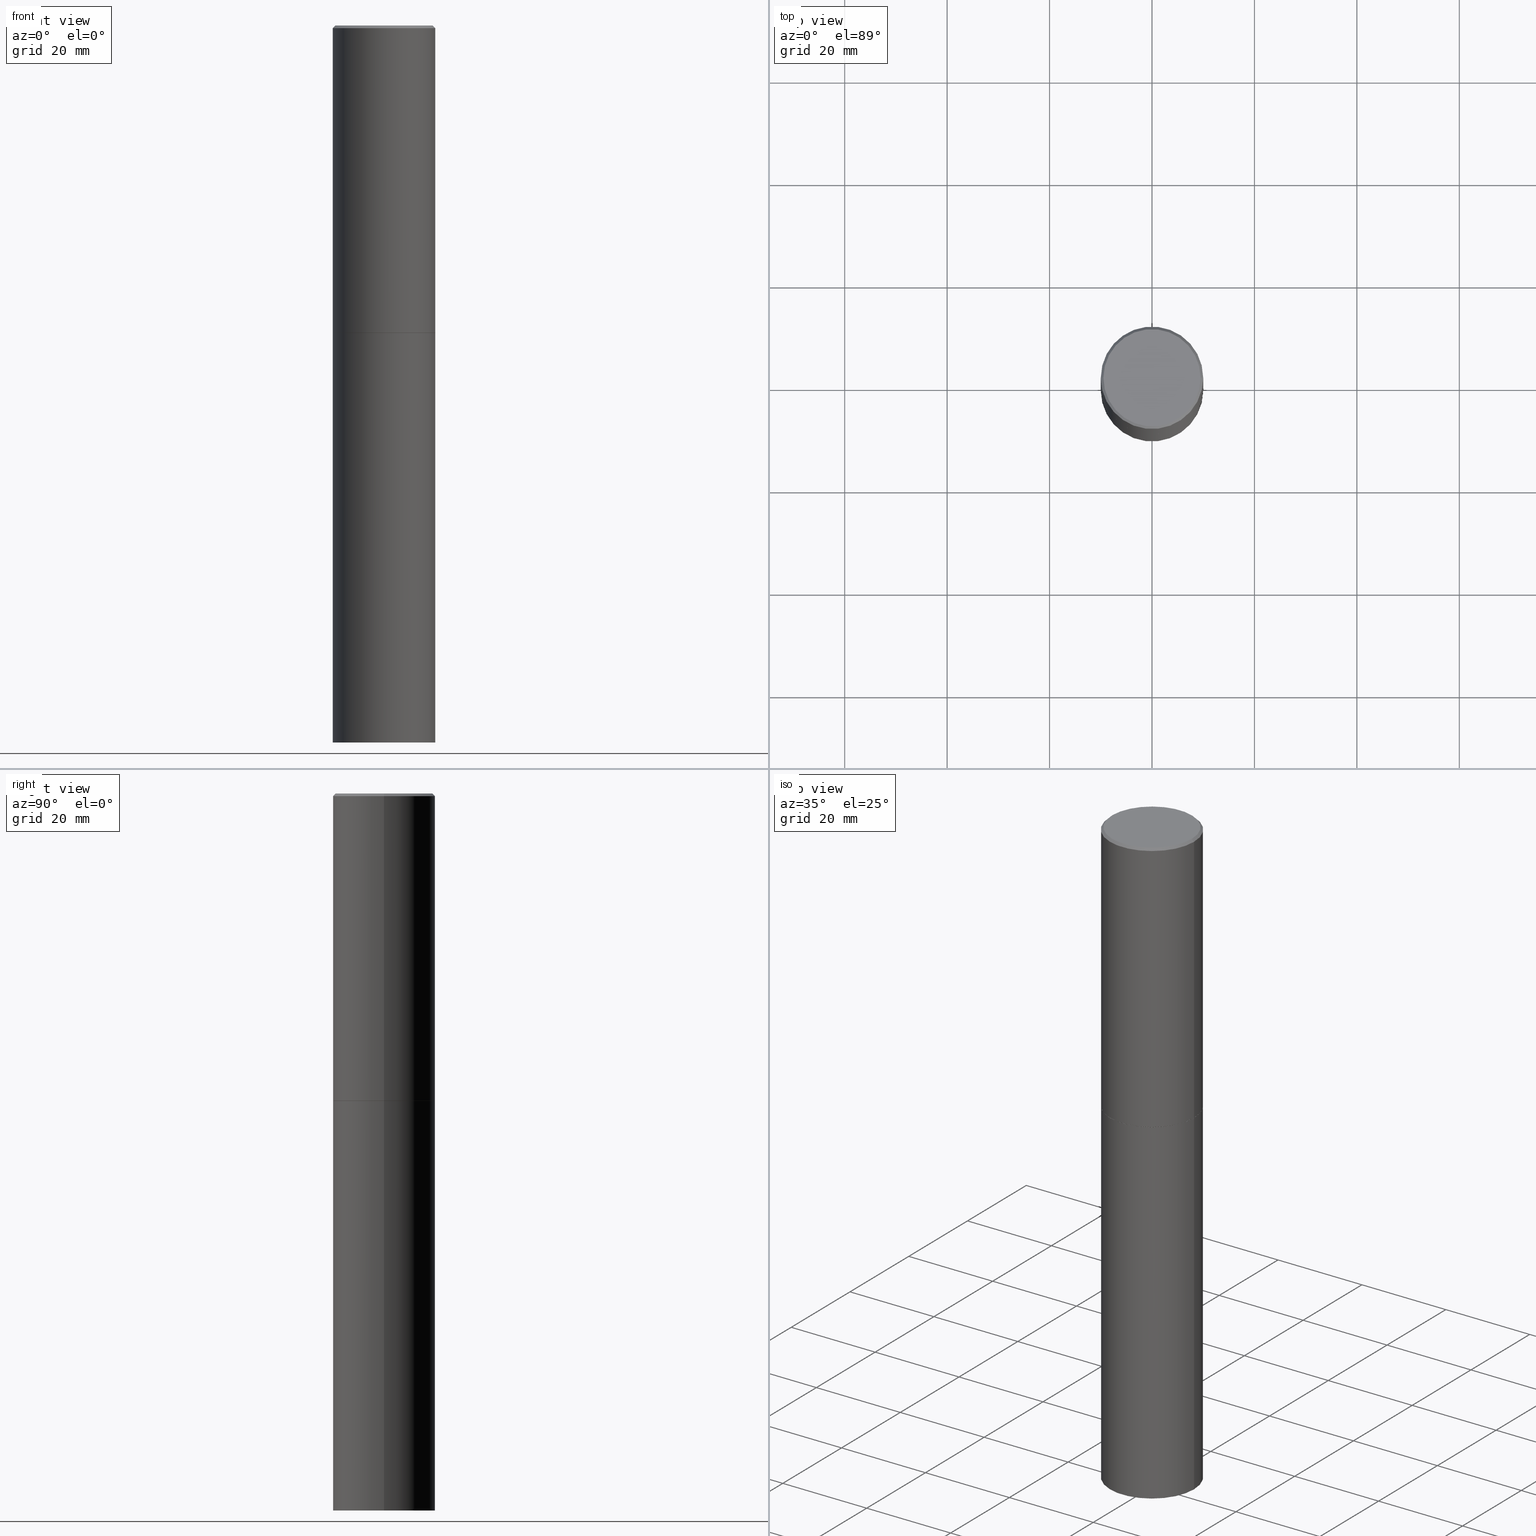
[diagram: canonical four-view strip — front | top / right | iso, engineering-drawing reading convention]
A machine part, canonical four-view strip (front | top / right | iso — engineering-drawing reading convention). The complete STEP part file that produces these views, byte-faithful:
ISO-10303-21;
HEADER;
FILE_DESCRIPTION (( 'STEP AP203' ),
    '1' );
FILE_NAME ('74843.STEP',
    '2024-05-03T15:04:15',
    ( '' ),
    ( '' ),
    'SwSTEP 2.0',
    'SolidWorks 2023',
    '' );
FILE_SCHEMA (( 'CONFIG_CONTROL_DESIGN' ));
ENDSEC;

DATA;
#1 = LINE ( 'NONE', #91, #218 ) ;
#2 = ADVANCED_FACE ( 'NONE', ( #58 ), #363, .F. ) ;
#3 = PERSON_AND_ORGANIZATION ( #118, #152 ) ;
#4 = DIRECTION ( 'NONE',  ( 2.438088387897960049E-29, -3.491481338843145188E-15, -1.000000000000000000 ) ) ;
#5 = CARTESIAN_POINT ( 'NONE',  ( 5.776686413970530874E-29, -8.247577218615279626E-15, -2.362200000000000077 ) ) ;
#6 = APPROVAL_STATUS ( 'not_yet_approved' ) ;
#7 = AXIS2_PLACEMENT_3D ( 'NONE', #143, #252, #361 ) ;
#8 = DIRECTION ( 'NONE',  ( -2.445468806185136597E-29, 3.491481338843145583E-15, 1.000000000000000000 ) ) ;
#9 = AXIS2_PLACEMENT_3D ( 'NONE', #273, #48, #353 ) ;
#10 = ORIENTED_EDGE ( 'NONE', *, *, #226, .T. ) ;
#11 = APPROVAL_STATUS ( 'not_yet_approved' ) ;
#12 = CARTESIAN_POINT ( 'NONE',  ( -0.3926999999999999935, -5.457275895285366637E-15, -2.362200000000000077 ) ) ;
#13 = EDGE_LOOP ( 'NONE', ( #231, #260, #347, #313 ) ) ;
#14 = DIRECTION ( 'NONE',  ( -2.445468806185136597E-29, 3.491481338843145583E-15, 1.000000000000000000 ) ) ;
#15 = CC_DESIGN_PERSON_AND_ORGANIZATION_ASSIGNMENT ( #201, #255, ( #169 ) ) ;
#16 = LINE ( 'NONE', #194, #40 ) ;
#17 = CC_DESIGN_PERSON_AND_ORGANIZATION_ASSIGNMENT ( #185, #160, ( #163 ) ) ;
#18 = LOCAL_TIME ( 11, 4, 15.00000000000000000, #341 ) ;
#19 = DIRECTION ( 'NONE',  ( -2.445468806185136597E-29, 3.491481338843145583E-15, 1.000000000000000000 ) ) ;
#20 = DIRECTION ( 'NONE',  ( 1.000000000000000000, -6.982962677686268288E-15, 0.000000000000000000 ) ) ;
#21 = MECHANICAL_CONTEXT ( 'NONE', #151, 'mechanical' ) ;
#22 = ORIENTED_EDGE ( 'NONE', *, *, #226, .F. ) ;
#23 = CIRCLE ( 'NONE', #7, 0.3937000000000000499 ) ;
#24 = APPROVAL ( #283, 'UNSPECIFIED' ) ;
#25 =( NAMED_UNIT ( * ) SI_UNIT ( $, .STERADIAN. ) SOLID_ANGLE_UNIT ( ) );
#26 = DIRECTION ( 'NONE',  ( 0.7071067811864509833, -2.468850131081245741E-15, 0.7071067811866440511 ) ) ;
#27 = VERTEX_POINT ( 'NONE', #207 ) ;
#28 = DATE_TIME_ROLE ( 'classification_date' ) ;
#29 = ORIENTED_EDGE ( 'NONE', *, *, #149, .F. ) ;
#30 = EDGE_CURVE ( 'NONE', #242, #64, #336, .T. ) ;
#31 = CYLINDRICAL_SURFACE ( 'NONE', #101, 0.3936999999999999389 ) ;
#32 = COORDINATED_UNIVERSAL_TIME_OFFSET ( 5, 0, .BEHIND. ) ;
#33 = AXIS2_PLACEMENT_3D ( 'NONE', #358, #14, #197 ) ;
#34 = DIRECTION ( 'NONE',  ( 1.000000000000000000, -6.982962677686268288E-15, 0.000000000000000000 ) ) ;
#35 = LINE ( 'NONE', #12, #54 ) ;
#36 = EDGE_CURVE ( 'NONE', #145, #307, #176, .T. ) ;
#37 = DIRECTION ( 'NONE',  ( 1.000000000000000000, -6.982962677686266711E-15, 4.876212485538977921E-29 ) ) ;
#38 = ORIENTED_EDGE ( 'NONE', *, *, #36, .F. ) ;
#39 = DIRECTION ( 'NONE',  ( 1.000000000000000000, -6.982962677686265922E-15, 4.876176775795935793E-29 ) ) ;
#40 = VECTOR ( 'NONE', #141, 39.37007874015748143 ) ;
#41 = ORIENTED_EDGE ( 'NONE', *, *, #291, .F. ) ;
#42 = EDGE_CURVE ( 'NONE', #307, #27, #206, .T. ) ;
#43 = CARTESIAN_POINT ( 'NONE',  ( -2.087702828670439639E-46, 2.980686340760894400E-32, 8.537024980200822558E-18 ) ) ;
#44 = VECTOR ( 'NONE', #56, 39.37007874015748143 ) ;
#45 = VERTEX_POINT ( 'NONE', #365 ) ;
#46 = LOCAL_TIME ( 11, 4, 15.00000000000000000, #90 ) ;
#47 = CARTESIAN_POINT ( 'NONE',  ( 5.776686413970529753E-29, -8.247577218615279626E-15, -2.362200000000000077 ) ) ;
#48 = DIRECTION ( 'NONE',  ( 2.445468806185136597E-29, -3.491481338843145583E-15, -1.000000000000000000 ) ) ;
#49 = ORIENTED_EDGE ( 'NONE', *, *, #198, .F. ) ;
#50 = DIMENSIONAL_EXPONENTS ( 1.000000000000000000, 0.000000000000000000, 0.000000000000000000, 0.000000000000000000, 0.000000000000000000, 0.000000000000000000, 0.000000000000000000 ) ;
#51 = CARTESIAN_POINT ( 'NONE',  ( 5.776686413970530874E-29, -8.247577218615279626E-15, -2.362200000000000077 ) ) ;
#52 = EDGE_CURVE ( 'NONE', #262, #64, #241, .T. ) ;
#53 = ORIENTED_EDGE ( 'NONE', *, *, #97, .F. ) ;
#54 = VECTOR ( 'NONE', #133, 39.37007874015748143 ) ;
#55 =( GEOMETRIC_REPRESENTATION_CONTEXT ( 3 ) GLOBAL_UNCERTAINTY_ASSIGNED_CONTEXT ( ( #106 ) ) GLOBAL_UNIT_ASSIGNED_CONTEXT ( ( #203, #332, #25 ) ) REPRESENTATION_CONTEXT ( 'NONE', 'WORKASPACE' ) );
#56 = DIRECTION ( 'NONE',  ( -0.7071067811865456854, 2.468850131082237733E-15, -0.7071067811865493491 ) ) ;
#57 = DATE_AND_TIME ( #122, #99 ) ;
#58 = FACE_OUTER_BOUND ( 'NONE', #216, .T. ) ;
#59 = PERSON_AND_ORGANIZATION ( #118, #152 ) ;
#60 = FACE_OUTER_BOUND ( 'NONE', #168, .T. ) ;
#61 = DIRECTION ( 'NONE',  ( -2.445468806185136877E-29, 3.491481338843145188E-15, 1.000000000000000000 ) ) ;
#62 = LOCAL_TIME ( 11, 4, 15.00000000000000000, #32 ) ;
#63 = DIRECTION ( 'NONE',  ( -2.445468806185136597E-29, 3.491481338843145583E-15, 1.000000000000000000 ) ) ;
#64 = VERTEX_POINT ( 'NONE', #116 ) ;
#65 = EDGE_CURVE ( 'NONE', #72, #180, #200, .T. ) ;
#66 = AXIS2_PLACEMENT_3D ( 'NONE', #295, #63, #39 ) ;
#67 = PLANE ( 'NONE',  #75 ) ;
#68 = ORIENTED_EDGE ( 'NONE', *, *, #291, .T. ) ;
#69 = CLOSED_SHELL ( 'NONE', ( #93, #280, #232, #286, #254, #127, #2, #140 ) ) ;
#70 = DIRECTION ( 'NONE',  ( -2.445468806185136597E-29, 3.491481338843145583E-15, 1.000000000000000000 ) ) ;
#71 = CC_DESIGN_SECURITY_CLASSIFICATION ( #92, ( #163 ) ) ;
#72 = VERTEX_POINT ( 'NONE', #80 ) ;
#73 = EDGE_CURVE ( 'NONE', #148, #242, #345, .T. ) ;
#74 = ORIENTED_EDGE ( 'NONE', *, *, #73, .T. ) ;
#75 = AXIS2_PLACEMENT_3D ( 'NONE', #294, #164, #264 ) ;
#76 = EDGE_CURVE ( 'NONE', #307, #145, #23, .T. ) ;
#77 = CIRCLE ( 'NONE', #188, 0.3937000000000001054 ) ;
#78 = DIRECTION ( 'NONE',  ( -2.445468806185136597E-29, 3.491481338843145583E-15, 1.000000000000000000 ) ) ;
#79 = LOCAL_TIME ( 11, 4, 15.00000000000000000, #119 ) ;
#80 = CARTESIAN_POINT ( 'NONE',  ( -0.3736999999999998101, 2.644447966039787875E-15, 8.537024980182450727E-18 ) ) ;
#81 = ADVANCED_FACE ( 'NONE', ( #60 ), #67, .T. ) ;
#82 = CARTESIAN_POINT ( 'NONE',  ( 0.3926999999999999935, -1.098978666214267683E-14, -2.362200000000000077 ) ) ;
#83 = EDGE_LOOP ( 'NONE', ( #41, #120, #249, #298 ) ) ;
#84 = EDGE_LOOP ( 'NONE', ( #49, #187, #114, #22 ) ) ;
#85 = COORDINATED_UNIVERSAL_TIME_OFFSET ( 5, 0, .BEHIND. ) ;
#86 = CARTESIAN_POINT ( 'NONE',  ( 0.3926999999999999935, -1.098978666214267683E-14, -2.362200000000000077 ) ) ;
#87 = PERSON_AND_ORGANIZATION_ROLE ( 'creator' ) ;
#88 = DIRECTION ( 'NONE',  ( 1.000000000000000000, -6.982962677686268288E-15, 0.000000000000000000 ) ) ;
#89 = CONICAL_SURFACE ( 'NONE', #196, 0.3926999999999999935, 0.7853981633973118326 ) ;
#90 = COORDINATED_UNIVERSAL_TIME_OFFSET ( 5, 0, .BEHIND. ) ;
#91 = CARTESIAN_POINT ( 'NONE',  ( -0.3937000000000000499, 2.797406750687514786E-15, -1.936584745033356735E-29 ) ) ;
#92 = SECURITY_CLASSIFICATION ( '', '', #314 ) ;
#93 = ADVANCED_FACE ( 'NONE', ( #134 ), #224, .T. ) ;
#94 = DIRECTION ( 'NONE',  ( 1.000000000000000000, -6.982962677686267499E-15, 0.000000000000000000 ) ) ;
#95 = CARTESIAN_POINT ( 'NONE',  ( 0.000000000000000000, 0.000000000000000000, 0.000000000000000000 ) ) ;
#96 = AXIS2_PLACEMENT_3D ( 'NONE', #123, #237, #340 ) ;
#97 = EDGE_CURVE ( 'NONE', #148, #262, #35, .T. ) ;
#98 = DESIGN_CONTEXT ( 'detailed design', #316, 'design' ) ;
#99 = LOCAL_TIME ( 11, 4, 15.00000000000000000, #85 ) ;
#100 = DIRECTION ( 'NONE',  ( 1.000000000000000000, -6.982962677686267499E-15, 0.000000000000000000 ) ) ;
#101 = AXIS2_PLACEMENT_3D ( 'NONE', #154, #329, #303 ) ;
#102 = CIRCLE ( 'NONE', #159, 0.3736999999999998101 ) ;
#103 = DIRECTION ( 'NONE',  ( 1.000000000000000000, -6.982962677686266711E-15, 4.876212485538977921E-29 ) ) ;
#104 = AXIS2_PLACEMENT_3D ( 'NONE', #227, #181, #333 ) ;
#105 = CIRCLE ( 'NONE', #257, 0.3736999999999998101 ) ;
#106 = UNCERTAINTY_MEASURE_WITH_UNIT (LENGTH_MEASURE( 1.000000000000000082E-05 ), #203, 'distance_accuracy_value', 'NONE');
#107 = DIRECTION ( 'NONE',  ( -2.445468806185136597E-29, 3.491481338843145583E-15, 1.000000000000000000 ) ) ;
#108 = ORIENTED_EDGE ( 'NONE', *, *, #65, .T. ) ;
#109 = EDGE_CURVE ( 'NONE', #242, #148, #270, .T. ) ;
#110 = APPLICATION_PROTOCOL_DEFINITION ( 'international standard', 'config_control_design', 1994, #151 ) ;
#111 = VECTOR ( 'NONE', #26, 39.37007874015748143 ) ;
#112 = ORIENTED_EDGE ( 'NONE', *, *, #109, .F. ) ;
#113 = APPLICATION_PROTOCOL_DEFINITION ( 'international standard', 'config_control_design', 1994, #316 ) ;
#114 = ORIENTED_EDGE ( 'NONE', *, *, #42, .T. ) ;
#115 = APPROVAL_ROLE ( '' ) ;
#116 = CARTESIAN_POINT ( 'NONE',  ( 0.3937000000000001054, -1.099327814348151826E-14, -2.361199999999999743 ) ) ;
#117 = APPROVAL ( #6, 'UNSPECIFIED' ) ;
#118 = PERSON ( 'UNSPECIFIED', 'UNSPECIFIED', 'UNSPECIFIED', ('UNSPECIFIED'), ('UNSPECIFIED'), ('UNSPECIFIED') ) ;
#119 = COORDINATED_UNIVERSAL_TIME_OFFSET ( 5, 0, .BEHIND. ) ;
#120 = ORIENTED_EDGE ( 'NONE', *, *, #52, .T. ) ;
#121 = AXIS2_PLACEMENT_3D ( 'NONE', #302, #107, #330 ) ;
#122 = CALENDAR_DATE ( 2024, 3, 5 ) ;
#123 = CARTESIAN_POINT ( 'NONE',  ( 4.890937612370294178E-31, -6.982962677686321191E-17, -0.02000000000000008715 ) ) ;
#124 = APPROVAL_ROLE ( '' ) ;
#125 = DIRECTION ( 'NONE',  ( -2.445468806185136597E-29, 3.491481338843145583E-15, 1.000000000000000000 ) ) ;
#126 = PRODUCT_DEFINITION_SHAPE ( 'NONE', 'NONE',  #355 ) ;
#127 = ADVANCED_FACE ( 'NONE', ( #246 ), #89, .T. ) ;
#128 = CARTESIAN_POINT ( 'NONE',  ( 5.776686413970530874E-29, -8.247577218615279626E-15, -2.362200000000000077 ) ) ;
#129 = ORIENTED_EDGE ( 'NONE', *, *, #76, .T. ) ;
#130 = AXIS2_PLACEMENT_3D ( 'NONE', #228, #78, #258 ) ;
#131 = DATE_AND_TIME ( #153, #18 ) ;
#132 = AXIS2_PLACEMENT_3D ( 'NONE', #306, #360, #339 ) ;
#133 = DIRECTION ( 'NONE',  ( -0.7071067811864509833, 7.493145998870005484E-15, 0.7071067811866440511 ) ) ;
#134 = FACE_OUTER_BOUND ( 'NONE', #13, .T. ) ;
#135 = AXIS2_PLACEMENT_3D ( 'NONE', #349, #343, #94 ) ;
#136 = DIRECTION ( 'NONE',  ( -2.445468806185136597E-29, 3.491481338843145583E-15, 1.000000000000000000 ) ) ;
#137 = ORIENTED_EDGE ( 'NONE', *, *, #73, .F. ) ;
#138 = LINE ( 'NONE', #352, #251 ) ;
#139 = CARTESIAN_POINT ( 'NONE',  ( -0.3937000000000001609, -1.359550931339131820E-15, -2.361199999999999743 ) ) ;
#140 = ADVANCED_FACE ( 'NONE', ( #290 ), #157, .F. ) ;
#141 = DIRECTION ( 'NONE',  ( -2.445468806185136877E-29, 3.491481338843145188E-15, 1.000000000000000000 ) ) ;
#142 = APPROVAL_PERSON_ORGANIZATION ( #344, #117, #267 ) ;
#143 = CARTESIAN_POINT ( 'NONE',  ( 1.347893496593123646E-28, -1.924434684343564878E-14, -5.511800000000000033 ) ) ;
#144 = VECTOR ( 'NONE', #146, 39.37007874015748143 ) ;
#145 = VERTEX_POINT ( 'NONE', #209 ) ;
#146 = DIRECTION ( 'NONE',  ( -2.445468806185136877E-29, 3.491481338843145188E-15, 1.000000000000000000 ) ) ;
#147 = DIRECTION ( 'NONE',  ( 0.7071067811865456854, -7.319954787623249734E-15, -0.7071067811865493491 ) ) ;
#148 = VERTEX_POINT ( 'NONE', #323 ) ;
#149 = EDGE_CURVE ( 'NONE', #72, #274, #102, .T. ) ;
#150 = EDGE_LOOP ( 'NONE', ( #191, #10 ) ) ;
#151 = APPLICATION_CONTEXT ( 'configuration controlled 3d designs of mechanical parts and assemblies' ) ;
#152 = ORGANIZATION ( 'UNSPECIFIED', 'UNSPECIFIED', '' ) ;
#153 = CALENDAR_DATE ( 2024, 3, 5 ) ;
#154 = CARTESIAN_POINT ( 'NONE',  ( 0.000000000000000000, 0.000000000000000000, 0.000000000000000000 ) ) ;
#155 = ADVANCED_FACE ( 'NONE', ( #186 ), #271, .F. ) ;
#156 = APPROVAL_DATE_TIME ( #131, #117 ) ;
#157 = PLANE ( 'NONE',  #362 ) ;
#158 = ORIENTED_EDGE ( 'NONE', *, *, #52, .F. ) ;
#159 = AXIS2_PLACEMENT_3D ( 'NONE', #315, #346, #37 ) ;
#160 = PERSON_AND_ORGANIZATION_ROLE ( 'design_supplier' ) ;
#161 = CYLINDRICAL_SURFACE ( 'NONE', #351, 0.3937000000000000499 ) ;
#162 = SHAPE_DEFINITION_REPRESENTATION ( #126, #359 ) ;
#163 = PRODUCT_DEFINITION_FORMATION_WITH_SPECIFIED_SOURCE ( 'ANY', '', #169, .NOT_KNOWN. ) ;
#164 = DIRECTION ( 'NONE',  ( 2.438088387897960049E-29, -3.491481338843145188E-15, -1.000000000000000000 ) ) ;
#165 = ADVANCED_FACE ( 'NONE', ( #318 ), #161, .T. ) ;
#166 = ORIENTED_EDGE ( 'NONE', *, *, #198, .T. ) ;
#167 = CARTESIAN_POINT ( 'NONE',  ( -0.3936999999999998279, 2.679362779428218735E-15, -0.02000000000000008715 ) ) ;
#168 = EDGE_LOOP ( 'NONE', ( #175, #38 ) ) ;
#169 = PRODUCT ( '74843', '74843', '', ( #21 ) ) ;
#170 = VECTOR ( 'NONE', #147, 39.37007874015748143 ) ;
#171 = ORIENTED_EDGE ( 'NONE', *, *, #331, .F. ) ;
#172 = ADVANCED_FACE ( 'NONE', ( #325 ), #192, .T. ) ;
#173 = CARTESIAN_POINT ( 'NONE',  ( 4.890937612370294178E-31, -6.982962677686321191E-17, -0.02000000000000008715 ) ) ;
#174 = DIRECTION ( 'NONE',  ( -2.445468806185136597E-29, 3.491481338843145583E-15, 1.000000000000000000 ) ) ;
#175 = ORIENTED_EDGE ( 'NONE', *, *, #76, .F. ) ;
#176 = CIRCLE ( 'NONE', #104, 0.3937000000000000499 ) ;
#177 = ORIENTED_EDGE ( 'NONE', *, *, #342, .F. ) ;
#178 = MANIFOLD_SOLID_BREP ( 'Body-Move/Copy2[2]', #69 ) ;
#179 = PERSON_AND_ORGANIZATION ( #118, #152 ) ;
#180 = VERTEX_POINT ( 'NONE', #167 ) ;
#181 = DIRECTION ( 'NONE',  ( -2.445468806185136597E-29, 3.491481338843145583E-15, 1.000000000000000000 ) ) ;
#182 = PERSON_AND_ORGANIZATION_ROLE ( 'classification_officer' ) ;
#183 = FACE_OUTER_BOUND ( 'NONE', #83, .T. ) ;
#184 = DIRECTION ( 'NONE',  ( -2.445468806185136597E-29, 3.491481338843145583E-15, 1.000000000000000000 ) ) ;
#185 = PERSON_AND_ORGANIZATION ( #118, #152 ) ;
#186 = FACE_OUTER_BOUND ( 'NONE', #150, .T. ) ;
#187 = ORIENTED_EDGE ( 'NONE', *, *, #36, .T. ) ;
#188 = AXIS2_PLACEMENT_3D ( 'NONE', #215, #8, #244 ) ;
#189 = CC_DESIGN_DATE_AND_TIME_ASSIGNMENT ( #238, #28, ( #92 ) ) ;
#190 = CONICAL_SURFACE ( 'NONE', #96, 0.3936999999999998279, 0.7853981633974457255 ) ;
#191 = ORIENTED_EDGE ( 'NONE', *, *, #301, .T. ) ;
#192 = CYLINDRICAL_SURFACE ( 'NONE', #66, 0.3937000000000000499 ) ;
#193 = ORIENTED_EDGE ( 'NONE', *, *, #222, .T. ) ;
#194 = CARTESIAN_POINT ( 'NONE',  ( 0.3936999999999999389, -2.749192406205082822E-15, 1.919750796630859611E-29 ) ) ;
#195 = ORIENTED_EDGE ( 'NONE', *, *, #331, .T. ) ;
#196 = AXIS2_PLACEMENT_3D ( 'NONE', #128, #70, #34 ) ;
#197 = DIRECTION ( 'NONE',  ( 1.000000000000000000, -6.982962677686266711E-15, 0.000000000000000000 ) ) ;
#198 = EDGE_CURVE ( 'NONE', #145, #256, #1, .T. ) ;
#199 = AXIS2_PLACEMENT_3D ( 'NONE', #289, #4, #350 ) ;
#200 = LINE ( 'NONE', #311, #44 ) ;
#201 = PERSON_AND_ORGANIZATION ( #118, #152 ) ;
#202 = ORIENTED_EDGE ( 'NONE', *, *, #301, .F. ) ;
#203 =( CONVERSION_BASED_UNIT ( 'INCH', #308 ) LENGTH_UNIT ( ) NAMED_UNIT ( #50 ) );
#204 = DIRECTION ( 'NONE',  ( -2.438088387897960049E-29, 3.491481338843145188E-15, 1.000000000000000000 ) ) ;
#205 = CC_DESIGN_PERSON_AND_ORGANIZATION_ASSIGNMENT ( #59, #263, ( #163 ) ) ;
#206 = LINE ( 'NONE', #309, #144 ) ;
#207 = CARTESIAN_POINT ( 'NONE',  ( 0.3937000000000000499, -1.099676962482036284E-14, -2.362200000000000077 ) ) ;
#208 = DATE_TIME_ROLE ( 'creation_date' ) ;
#209 = CARTESIAN_POINT ( 'NONE',  ( -0.3937000000000000499, -1.094855528033794942E-14, -5.511800000000000033 ) ) ;
#210 = DATE_AND_TIME ( #219, #46 ) ;
#211 = CARTESIAN_POINT ( 'NONE',  ( 5.776686413970530874E-29, -8.247577218615279626E-15, -2.362200000000000077 ) ) ;
#212 = CLOSED_SHELL ( 'NONE', ( #165, #81, #155, #172 ) ) ;
#213 = AXIS2_PLACEMENT_3D ( 'NONE', #173, #19, #364 ) ;
#214 = CALENDAR_DATE ( 2024, 3, 5 ) ;
#215 = CARTESIAN_POINT ( 'NONE',  ( 5.774240945164344150E-29, -8.244085737276435042E-15, -2.361199999999999743 ) ) ;
#216 = EDGE_LOOP ( 'NONE', ( #112, #137 ) ) ;
#217 = FACE_OUTER_BOUND ( 'NONE', #287, .T. ) ;
#218 = VECTOR ( 'NONE', #61, 39.37007874015748143 ) ;
#219 = CALENDAR_DATE ( 2024, 3, 5 ) ;
#220 = DIRECTION ( 'NONE',  ( 1.000000000000000000, -6.982962677686265922E-15, 4.876176775795935793E-29 ) ) ;
#221 = CYLINDRICAL_SURFACE ( 'NONE', #121, 0.3936999999999999389 ) ;
#222 = EDGE_CURVE ( 'NONE', #64, #262, #77, .T. ) ;
#223 = CARTESIAN_POINT ( 'NONE',  ( 0.3736999999999998101, -2.667287895133366781E-15, 8.537024980219274507E-18 ) ) ;
#224 = CONICAL_SURFACE ( 'NONE', #253, 0.3926999999999999935, 0.7853981633973118326 ) ;
#225 = CONICAL_SURFACE ( 'NONE', #9, 0.3936999999999998279, 0.7853981633974457255 ) ;
#226 = EDGE_CURVE ( 'NONE', #256, #27, #288, .T. ) ;
#227 = CARTESIAN_POINT ( 'NONE',  ( 1.347893496593123646E-28, -1.924434684343564878E-14, -5.511800000000000033 ) ) ;
#228 = CARTESIAN_POINT ( 'NONE',  ( 5.774240945164344150E-29, -8.244085737276435042E-15, -2.361199999999999743 ) ) ;
#229 = CIRCLE ( 'NONE', #243, 0.3937000000000000499 ) ;
#230 = CARTESIAN_POINT ( 'NONE',  ( 0.3936999999999998279, -2.770807688499514156E-15, -0.02000000000000008715 ) ) ;
#231 = ORIENTED_EDGE ( 'NONE', *, *, #109, .T. ) ;
#232 = ADVANCED_FACE ( 'NONE', ( #217 ), #190, .T. ) ;
#233 = CALENDAR_DATE ( 2024, 3, 5 ) ;
#234 = EDGE_LOOP ( 'NONE', ( #266, #195 ) ) ;
#235 = PERSON_AND_ORGANIZATION ( #118, #152 ) ;
#236 = ORIENTED_EDGE ( 'NONE', *, *, #342, .T. ) ;
#237 = DIRECTION ( 'NONE',  ( 2.445468806185136597E-29, -3.491481338843145583E-15, -1.000000000000000000 ) ) ;
#238 = DATE_AND_TIME ( #214, #62 ) ;
#239 = DIRECTION ( 'NONE',  ( 1.000000000000000000, -6.982962677686268288E-15, 0.000000000000000000 ) ) ;
#240 = DIRECTION ( 'NONE',  ( 2.438088387897960049E-29, -3.491481338843145188E-15, -1.000000000000000000 ) ) ;
#241 = CIRCLE ( 'NONE', #130, 0.3937000000000001054 ) ;
#242 = VERTEX_POINT ( 'NONE', #86 ) ;
#243 = AXIS2_PLACEMENT_3D ( 'NONE', #47, #136, #100 ) ;
#244 = DIRECTION ( 'NONE',  ( 1.000000000000000000, -6.982962677686263555E-15, 0.000000000000000000 ) ) ;
#245 = EDGE_LOOP ( 'NONE', ( #193, #68, #326, #284 ) ) ;
#246 = FACE_OUTER_BOUND ( 'NONE', #247, .T. ) ;
#247 = EDGE_LOOP ( 'NONE', ( #53, #74, #337, #158 ) ) ;
#248 = APPROVAL_PERSON_ORGANIZATION ( #179, #24, #115 ) ;
#249 = ORIENTED_EDGE ( 'NONE', *, *, #278, .T. ) ;
#250 = DIRECTION ( 'NONE',  ( -2.445468806185136877E-29, 3.491481338843145188E-15, 1.000000000000000000 ) ) ;
#251 = VECTOR ( 'NONE', #250, 39.37007874015748143 ) ;
#252 = DIRECTION ( 'NONE',  ( -2.445468806185136597E-29, 3.491481338843145583E-15, 1.000000000000000000 ) ) ;
#253 = AXIS2_PLACEMENT_3D ( 'NONE', #5, #184, #239 ) ;
#254 = ADVANCED_FACE ( 'NONE', ( #183 ), #31, .T. ) ;
#255 = PERSON_AND_ORGANIZATION_ROLE ( 'design_owner' ) ;
#256 = VERTEX_POINT ( 'NONE', #277 ) ;
#257 = AXIS2_PLACEMENT_3D ( 'NONE', #43, #356, #103 ) ;
#258 = DIRECTION ( 'NONE',  ( 1.000000000000000000, -6.982962677686263555E-15, 0.000000000000000000 ) ) ;
#259 = APPROVAL_DATE_TIME ( #285, #24 ) ;
#260 = ORIENTED_EDGE ( 'NONE', *, *, #97, .T. ) ;
#261 = PRODUCT_RELATED_PRODUCT_CATEGORY ( 'detail', '', ( #169 ) ) ;
#262 = VERTEX_POINT ( 'NONE', #139 ) ;
#263 = PERSON_AND_ORGANIZATION_ROLE ( 'creator' ) ;
#264 = DIRECTION ( 'NONE',  ( -1.000000000000000000, 6.982962677686265922E-15, -4.876176775795935793E-29 ) ) ;
#265 = DIRECTION ( 'NONE',  ( -1.000000000000000000, 6.982962677686265922E-15, -4.876176775795935793E-29 ) ) ;
#266 = ORIENTED_EDGE ( 'NONE', *, *, #149, .T. ) ;
#267 = APPROVAL_ROLE ( '' ) ;
#268 = EDGE_CURVE ( 'NONE', #180, #45, #335, .T. ) ;
#269 = DIRECTION ( 'NONE',  ( -2.445468806185136597E-29, 3.491481338843145583E-15, 1.000000000000000000 ) ) ;
#270 = CIRCLE ( 'NONE', #282, 0.3926999999999999935 ) ;
#271 = PLANE ( 'NONE',  #199 ) ;
#272 = EDGE_LOOP ( 'NONE', ( #177, #29, #108, #354 ) ) ;
#273 = CARTESIAN_POINT ( 'NONE',  ( 4.890937612370294178E-31, -6.982962677686321191E-17, -0.02000000000000008715 ) ) ;
#274 = VERTEX_POINT ( 'NONE', #223 ) ;
#275 = CC_DESIGN_PERSON_AND_ORGANIZATION_ASSIGNMENT ( #3, #182, ( #92 ) ) ;
#276 = FACE_OUTER_BOUND ( 'NONE', #245, .T. ) ;
#277 = CARTESIAN_POINT ( 'NONE',  ( -0.3937000000000000499, -1.094855528033794942E-14, -2.362200000000000077 ) ) ;
#278 = EDGE_CURVE ( 'NONE', #64, #45, #16, .T. ) ;
#279 = EDGE_LOOP ( 'NONE', ( #129, #166, #202, #281 ) ) ;
#280 = ADVANCED_FACE ( 'NONE', ( #276 ), #221, .T. ) ;
#281 = ORIENTED_EDGE ( 'NONE', *, *, #42, .F. ) ;
#282 = AXIS2_PLACEMENT_3D ( 'NONE', #211, #269, #88 ) ;
#283 = APPROVAL_STATUS ( 'not_yet_approved' ) ;
#284 = ORIENTED_EDGE ( 'NONE', *, *, #278, .F. ) ;
#285 = DATE_AND_TIME ( #233, #79 ) ;
#286 = ADVANCED_FACE ( 'NONE', ( #300 ), #225, .T. ) ;
#287 = EDGE_LOOP ( 'NONE', ( #171, #236, #334, #322 ) ) ;
#288 = CIRCLE ( 'NONE', #135, 0.3937000000000000499 ) ;
#289 = CARTESIAN_POINT ( 'NONE',  ( 2.749192406205140803E-15, 0.3936999999999917788, -2.362200000000001410 ) ) ;
#290 = FACE_OUTER_BOUND ( 'NONE', #234, .T. ) ;
#291 = EDGE_CURVE ( 'NONE', #262, #180, #138, .T. ) ;
#292 = PERSON_AND_ORGANIZATION ( #118, #152 ) ;
#293 = APPROVAL_DATE_TIME ( #57, #319 ) ;
#294 = CARTESIAN_POINT ( 'NONE',  ( 2.749192406205217717E-15, 0.3936999999999807875, -5.511800000000000921 ) ) ;
#295 = CARTESIAN_POINT ( 'NONE',  ( 0.000000000000000000, 0.000000000000000000, 0.000000000000000000 ) ) ;
#296 = MANIFOLD_SOLID_BREP ( 'Body-Move/Copy2[1]', #212 ) ;
#297 = CARTESIAN_POINT ( 'NONE',  ( 0.3937000000000000499, -2.199353924964073200E-14, -5.511800000000000033 ) ) ;
#298 = ORIENTED_EDGE ( 'NONE', *, *, #268, .F. ) ;
#299 = AXIS2_PLACEMENT_3D ( 'NONE', #51, #204, #366 ) ;
#300 = FACE_OUTER_BOUND ( 'NONE', #272, .T. ) ;
#301 = EDGE_CURVE ( 'NONE', #27, #256, #229, .T. ) ;
#302 = CARTESIAN_POINT ( 'NONE',  ( 0.000000000000000000, 0.000000000000000000, 0.000000000000000000 ) ) ;
#303 = DIRECTION ( 'NONE',  ( 1.000000000000000000, -6.982962677686266711E-15, 4.876176775795935793E-29 ) ) ;
#304 = CC_DESIGN_APPROVAL ( #319, ( #163 ) ) ;
#305 = CARTESIAN_POINT ( 'NONE',  ( 5.776686413970530874E-29, -8.247577218615279626E-15, -2.362200000000000077 ) ) ;
#306 = CARTESIAN_POINT ( 'NONE',  ( 0.000000000000000000, 0.000000000000000000, 0.000000000000000000 ) ) ;
#307 = VERTEX_POINT ( 'NONE', #297 ) ;
#308 = LENGTH_MEASURE_WITH_UNIT ( LENGTH_MEASURE( 0.02539999999999999897 ), #312 );
#309 = CARTESIAN_POINT ( 'NONE',  ( 0.3937000000000000499, -2.749192406205083217E-15, 1.919750796630860172E-29 ) ) ;
#310 = LINE ( 'NONE', #230, #170 ) ;
#311 = CARTESIAN_POINT ( 'NONE',  ( -0.3936999999999998279, 2.679362779428218735E-15, -0.02000000000000008715 ) ) ;
#312 =( LENGTH_UNIT ( ) NAMED_UNIT ( * ) SI_UNIT ( $, .METRE. ) );
#313 = ORIENTED_EDGE ( 'NONE', *, *, #30, .F. ) ;
#314 = SECURITY_CLASSIFICATION_LEVEL ( 'unclassified' ) ;
#315 = CARTESIAN_POINT ( 'NONE',  ( -2.087702828670439639E-46, 2.980686340760894400E-32, 8.537024980200822558E-18 ) ) ;
#316 = APPLICATION_CONTEXT ( 'configuration controlled 3d designs of mechanical parts and assemblies' ) ;
#317 = AXIS2_PLACEMENT_3D ( 'NONE', #305, #174, #20 ) ;
#318 = FACE_OUTER_BOUND ( 'NONE', #279, .T. ) ;
#319 = APPROVAL ( #11, 'UNSPECIFIED' ) ;
#320 = CIRCLE ( 'NONE', #213, 0.3936999999999998279 ) ;
#321 = CARTESIAN_POINT ( 'NONE',  ( 2.609533152651356226E-15, 0.3736999999999998101, -1.300498063835582617E-15 ) ) ;
#322 = ORIENTED_EDGE ( 'NONE', *, *, #65, .F. ) ;
#323 = CARTESIAN_POINT ( 'NONE',  ( -0.3926999999999999935, -5.451977440937143446E-15, -2.362200000000000077 ) ) ;
#324 = CC_DESIGN_DATE_AND_TIME_ASSIGNMENT ( #210, #208, ( #355 ) ) ;
#325 = FACE_OUTER_BOUND ( 'NONE', #84, .T. ) ;
#326 = ORIENTED_EDGE ( 'NONE', *, *, #338, .F. ) ;
#327 = CC_DESIGN_PERSON_AND_ORGANIZATION_ASSIGNMENT ( #235, #87, ( #355 ) ) ;
#328 = CC_DESIGN_APPROVAL ( #24, ( #355 ) ) ;
#329 = DIRECTION ( 'NONE',  ( -2.445468806185136597E-29, 3.491481338843145583E-15, 1.000000000000000000 ) ) ;
#330 = DIRECTION ( 'NONE',  ( 1.000000000000000000, -6.982962677686266711E-15, 4.876176775795935793E-29 ) ) ;
#331 = EDGE_CURVE ( 'NONE', #274, #72, #105, .T. ) ;
#332 =( NAMED_UNIT ( * ) PLANE_ANGLE_UNIT ( ) SI_UNIT ( $, .RADIAN. ) );
#333 = DIRECTION ( 'NONE',  ( 1.000000000000000000, -6.982962677686267499E-15, 0.000000000000000000 ) ) ;
#334 = ORIENTED_EDGE ( 'NONE', *, *, #338, .T. ) ;
#335 = CIRCLE ( 'NONE', #33, 0.3936999999999998279 ) ;
#336 = LINE ( 'NONE', #82, #111 ) ;
#337 = ORIENTED_EDGE ( 'NONE', *, *, #30, .T. ) ;
#338 = EDGE_CURVE ( 'NONE', #45, #180, #320, .T. ) ;
#339 = DIRECTION ( 'NONE',  ( 1.000000000000000000, 0.000000000000000000, 0.000000000000000000 ) ) ;
#340 = DIRECTION ( 'NONE',  ( -1.000000000000000000, 6.982962677686266711E-15, 0.000000000000000000 ) ) ;
#341 = COORDINATED_UNIVERSAL_TIME_OFFSET ( 5, 0, .BEHIND. ) ;
#342 = EDGE_CURVE ( 'NONE', #274, #45, #310, .T. ) ;
#343 = DIRECTION ( 'NONE',  ( -2.445468806185136597E-29, 3.491481338843145583E-15, 1.000000000000000000 ) ) ;
#344 = PERSON_AND_ORGANIZATION ( #118, #152 ) ;
#345 = CIRCLE ( 'NONE', #317, 0.3926999999999999935 ) ;
#346 = DIRECTION ( 'NONE',  ( -2.445468806185136597E-29, 3.491481338843145583E-15, 1.000000000000000000 ) ) ;
#347 = ORIENTED_EDGE ( 'NONE', *, *, #222, .F. ) ;
#348 = CC_DESIGN_APPROVAL ( #117, ( #92 ) ) ;
#349 = CARTESIAN_POINT ( 'NONE',  ( 5.776686413970529753E-29, -8.247577218615279626E-15, -2.362200000000000077 ) ) ;
#350 = DIRECTION ( 'NONE',  ( -1.000000000000000000, 6.982962677686265922E-15, -4.876176775795935793E-29 ) ) ;
#351 = AXIS2_PLACEMENT_3D ( 'NONE', #95, #125, #220 ) ;
#352 = CARTESIAN_POINT ( 'NONE',  ( -0.3936999999999999389, 2.797406750687513998E-15, -1.936584745033356455E-29 ) ) ;
#353 = DIRECTION ( 'NONE',  ( -1.000000000000000000, 6.982962677686266711E-15, 0.000000000000000000 ) ) ;
#354 = ORIENTED_EDGE ( 'NONE', *, *, #268, .T. ) ;
#355 = PRODUCT_DEFINITION ( 'UNKNOWN', '', #163, #98 ) ;
#356 = DIRECTION ( 'NONE',  ( -2.445468806185136597E-29, 3.491481338843145583E-15, 1.000000000000000000 ) ) ;
#357 = APPROVAL_PERSON_ORGANIZATION ( #292, #319, #124 ) ;
#358 = CARTESIAN_POINT ( 'NONE',  ( 4.890937612370294178E-31, -6.982962677686321191E-17, -0.02000000000000008715 ) ) ;
#359 = ADVANCED_BREP_SHAPE_REPRESENTATION ( '74843', ( #296, #178, #132 ), #55 ) ;
#360 = DIRECTION ( 'NONE',  ( 0.000000000000000000, 0.000000000000000000, 1.000000000000000000 ) ) ;
#361 = DIRECTION ( 'NONE',  ( 1.000000000000000000, -6.982962677686267499E-15, 0.000000000000000000 ) ) ;
#362 = AXIS2_PLACEMENT_3D ( 'NONE', #321, #240, #265 ) ;
#363 = PLANE ( 'NONE',  #299 ) ;
#364 = DIRECTION ( 'NONE',  ( 1.000000000000000000, -6.982962677686266711E-15, 0.000000000000000000 ) ) ;
#365 = CARTESIAN_POINT ( 'NONE',  ( 0.3936999999999998279, -2.770807688499514156E-15, -0.02000000000000008715 ) ) ;
#366 = DIRECTION ( 'NONE',  ( 1.000000000000000000, -6.982962677686265922E-15, 4.876176775795935793E-29 ) ) ;
ENDSEC;
END-ISO-10303-21;
